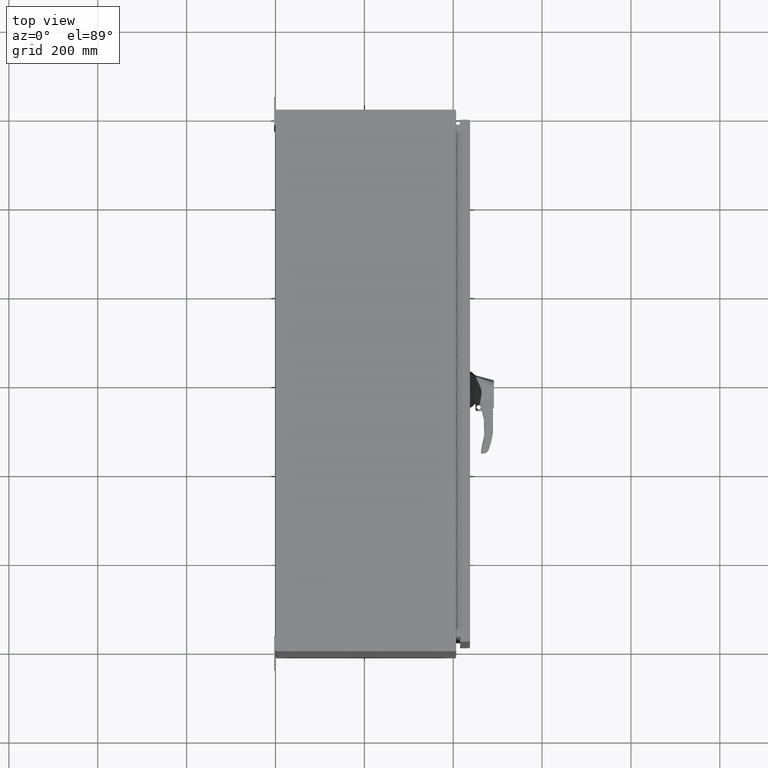
[diagram: clean part render]
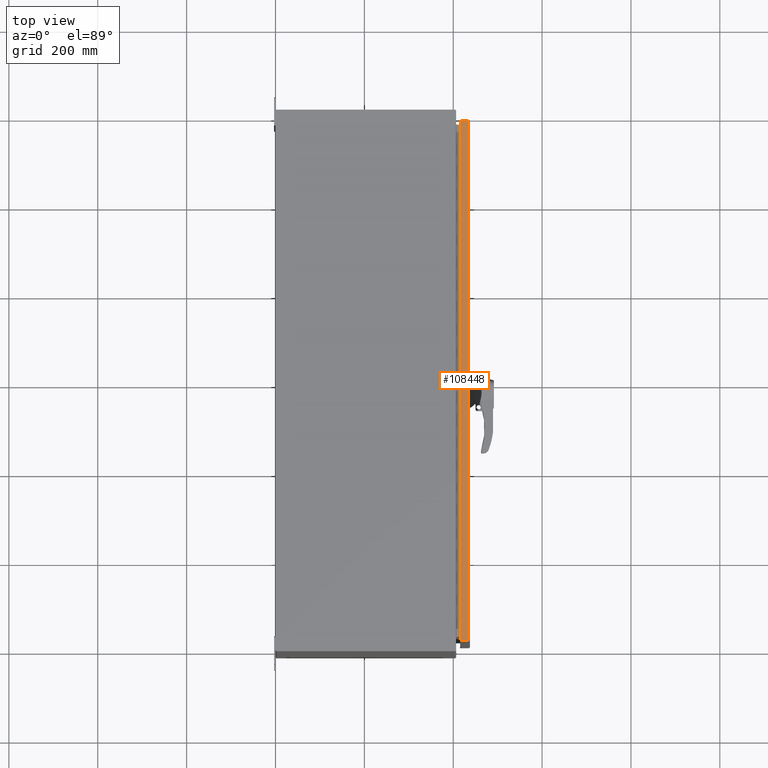
[diagram: same view with one face highlighted and labeled with its STEP entity id]
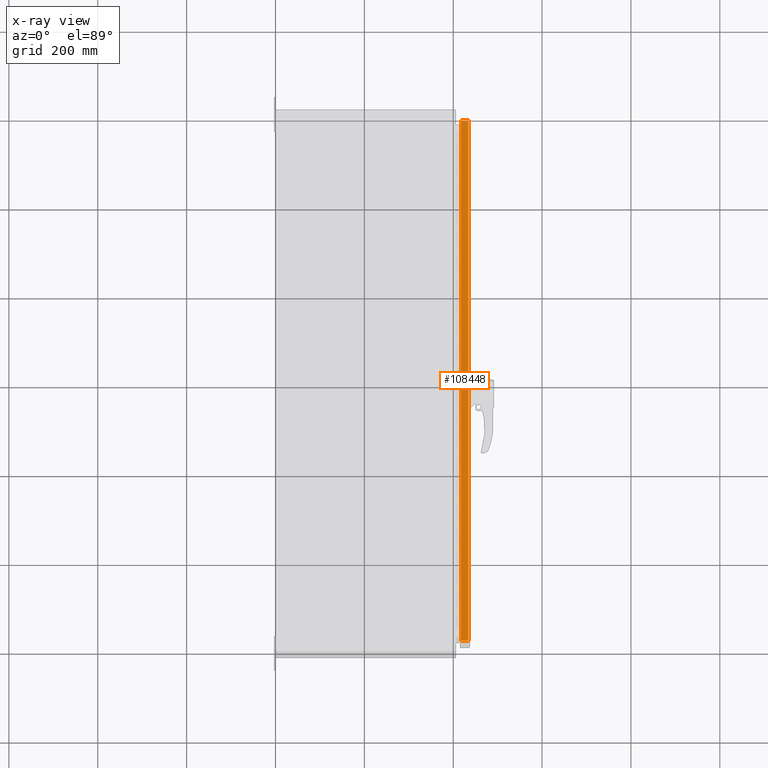
[diagram: x-ray of the same camera — body ghosted, the highlighted face saturated]
A machine part, top view. The second image highlights one B-rep face of the part: STEP entity #108448.
The next image is the same camera in x-ray: the body ghosted, the highlighted face saturated — about 0% of this face is hidden behind the body in this view.
In plain terms, the highlighted planar face has unit normal (-0, 0, 1).
Its self-contained STEP definition (entity closure, byte-faithful):
#1242 = DIRECTION ( 'NONE',  ( -6.123233995736769734E-17, -1.000000000000000000, 0.0000000000000000000 ) ) ;
#1589 = VERTEX_POINT ( 'NONE', #7558 ) ;
#1599 = CARTESIAN_POINT ( 'NONE',  ( -17.14799999999999258, -16.41499999999996007, -23.03042125984251953 ) ) ;
#1965 = CARTESIAN_POINT ( 'NONE',  ( -17.14799999999999258, -16.41499999999996007, 23.03042125984251598 ) ) ;
#2516 = EDGE_CURVE ( 'NONE', #1589, #12225, #29610, .T. ) ;
#4285 = DIRECTION ( 'NONE',  ( -0.0000000000000000000, -0.0000000000000000000, -1.000000000000000000 ) ) ;
#7379 = ORIENTED_EDGE ( 'NONE', *, *, #106622, .T. ) ;
#7558 = CARTESIAN_POINT ( 'NONE',  ( -17.14799999999998903, -17.08999999999996078, 23.03042125984251598 ) ) ;
#12225 = VERTEX_POINT ( 'NONE', #33936 ) ;
#22283 = FACE_OUTER_BOUND ( 'NONE', #80560, .T. ) ;
#23921 = DIRECTION ( 'NONE',  ( 6.123233995736769734E-17, 1.000000000000000000, -0.0000000000000000000 ) ) ;
#24799 = AXIS2_PLACEMENT_3D ( 'NONE', #107247, #63649, #1242 ) ;
#26591 = CARTESIAN_POINT ( 'NONE',  ( -17.14799999999998903, -17.08999999999996788, -22.98250000000000171 ) ) ;
#29205 = EDGE_CURVE ( 'NONE', #112495, #12225, #38582, .T. ) ;
#29610 = LINE ( 'NONE', #26591, #89914 ) ;
#31849 = VECTOR ( 'NONE', #23921, 39.37007874015748143 ) ;
#33936 = CARTESIAN_POINT ( 'NONE',  ( -17.14799999999998903, -17.08999999999996433, -23.03042125984251953 ) ) ;
#38582 = LINE ( 'NONE', #106038, #105659 ) ;
#40150 = ORIENTED_EDGE ( 'NONE', *, *, #106321, .T. ) ;
#41203 = ORIENTED_EDGE ( 'NONE', *, *, #2516, .F. ) ;
#61764 = PLANE ( 'NONE',  #24799 ) ;
#63649 = DIRECTION ( 'NONE',  ( -1.000000000000000000, 6.123233995736769734E-17, 0.0000000000000000000 ) ) ;
#64029 = VERTEX_POINT ( 'NONE', #1965 ) ;
#66342 = CARTESIAN_POINT ( 'NONE',  ( -17.14799999999999258, -16.41499999999996007, -22.98250000000000171 ) ) ;
#80560 = EDGE_LOOP ( 'NONE', ( #7379, #40150, #83504, #41203 ) ) ;
#83504 = ORIENTED_EDGE ( 'NONE', *, *, #29205, .T. ) ;
#85439 = LINE ( 'NONE', #66342, #110001 ) ;
#89914 = VECTOR ( 'NONE', #113494, 39.37007874015748143 ) ;
#95090 = CARTESIAN_POINT ( 'NONE',  ( -17.14799999999999258, -17.14749999999996177, 23.03042125984251598 ) ) ;
#96175 = LINE ( 'NONE', #95090, #31849 ) ;
#105659 = VECTOR ( 'NONE', #105672, 39.37007874015748143 ) ;
#105672 = DIRECTION ( 'NONE',  ( -6.123233995736769734E-17, -1.000000000000000000, 0.0000000000000000000 ) ) ;
#106038 = CARTESIAN_POINT ( 'NONE',  ( -17.14799999999999258, -17.14749999999996177, -23.03042125984251953 ) ) ;
#106321 = EDGE_CURVE ( 'NONE', #64029, #112495, #85439, .T. ) ;
#106622 = EDGE_CURVE ( 'NONE', #1589, #64029, #96175, .T. ) ;
#107247 = CARTESIAN_POINT ( 'NONE',  ( -17.14799999999999258, -17.14749999999996177, -22.98250000000000171 ) ) ;
#108448 = ADVANCED_FACE ( 'NONE', ( #22283 ), #61764, .T. ) ;
#110001 = VECTOR ( 'NONE', #4285, 39.37007874015748143 ) ;
#112495 = VERTEX_POINT ( 'NONE', #1599 ) ;
#113494 = DIRECTION ( 'NONE',  ( -0.0000000000000000000, -6.123233995736769734E-17, -1.000000000000000000 ) ) ;